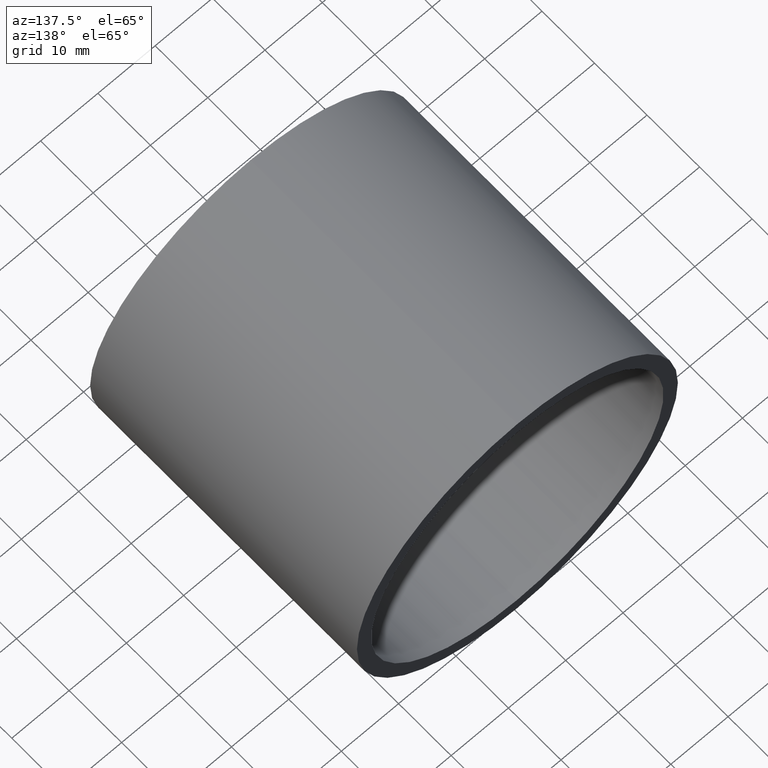
[diagram: clean part render]
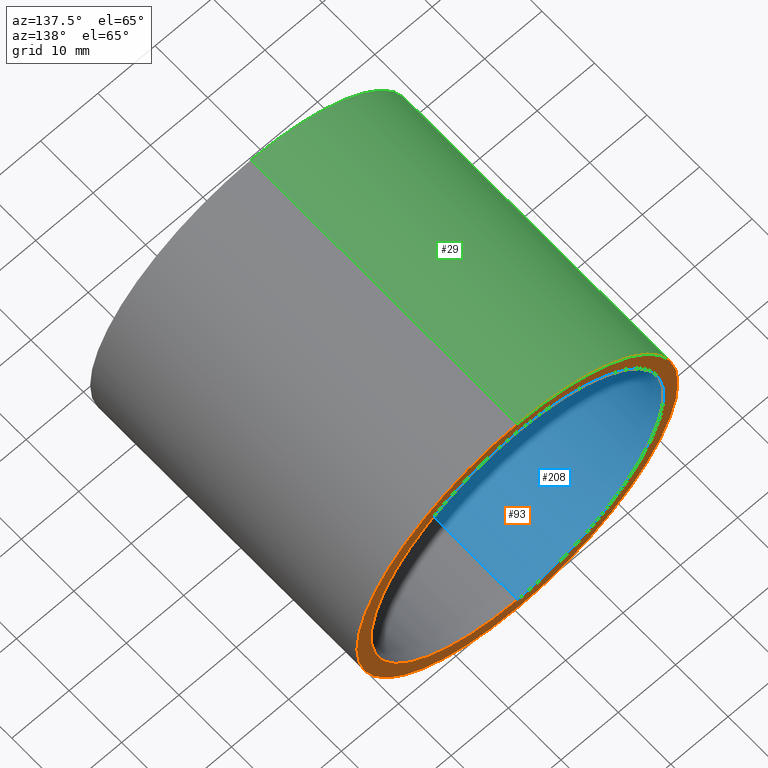
[diagram: same view with three faces highlighted in distinct colors, each labeled with its STEP entity id]
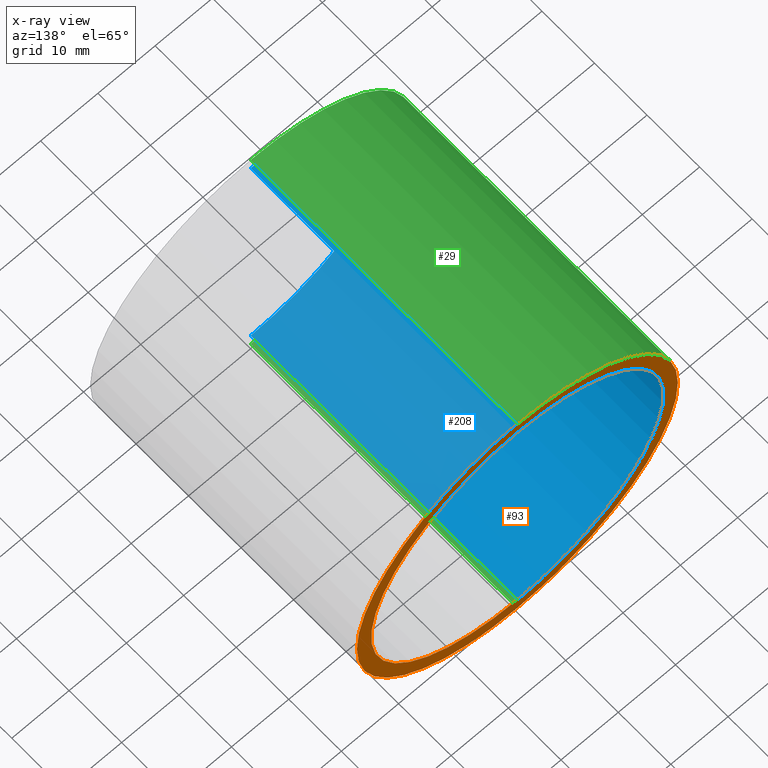
[diagram: x-ray of the same camera — body ghosted, the three highlighted faces saturated]
A machine part, auxiliary view with three faces highlighted in distinct colors.
The next image is the same camera in x-ray (body ghosted, the three faces saturated) — at least one of them is partly hidden behind the body in this view.
Their STEP definitions:

[orange] entity #93 — the highlighted planar face has unit normal (0, -1, 0).
#1 = EDGE_LOOP ( 'NONE', ( #199, #37 ) ) ;
#6 = CARTESIAN_POINT ( 'NONE',  ( 0.0000000000000000000, 50.79999999999998300, 0.0000000000000000000 ) ) ;
#7 = AXIS2_PLACEMENT_3D ( 'NONE', #200, #154, #181 ) ;
#18 = VERTEX_POINT ( 'NONE', #111 ) ;
#23 = ORIENTED_EDGE ( 'NONE', *, *, #167, .F. ) ;
#30 = CIRCLE ( 'NONE', #7, 28.00000000000002100 ) ;
#37 = ORIENTED_EDGE ( 'NONE', *, *, #239, .T. ) ;
#38 = DIRECTION ( 'NONE',  ( 0.0000000000000000000, 0.0000000000000000000, 1.000000000000000000 ) ) ;
#45 = AXIS2_PLACEMENT_3D ( 'NONE', #244, #228, #170 ) ;
#63 = CIRCLE ( 'NONE', #104, 28.00000000000002100 ) ;
#74 = EDGE_CURVE ( 'NONE', #123, #96, #155, .T. ) ;
#78 = DIRECTION ( 'NONE',  ( 0.0000000000000000000, 0.0000000000000000000, 1.000000000000000000 ) ) ;
#88 = CARTESIAN_POINT ( 'NONE',  ( 3.122849337825752200E-015, 50.79999999999998300, -25.50000000000001100 ) ) ;
#93 = ADVANCED_FACE ( 'NONE', ( #174, #125 ), #241, .F. ) ;
#96 = VERTEX_POINT ( 'NONE', #88 ) ;
#104 = AXIS2_PLACEMENT_3D ( 'NONE', #6, #211, #78 ) ;
#111 = CARTESIAN_POINT ( 'NONE',  ( 0.0000000000000000000, 50.79999999999998300, 28.00000000000002100 ) ) ;
#114 = CARTESIAN_POINT ( 'NONE',  ( 3.429011037612591600E-015, 50.79999999999998300, -28.00000000000002100 ) ) ;
#116 = DIRECTION ( 'NONE',  ( 0.0000000000000000000, -1.000000000000000000, 0.0000000000000000000 ) ) ;
#118 = DIRECTION ( 'NONE',  ( 0.0000000000000000000, -0.0000000000000000000, -1.000000000000000000 ) ) ;
#123 = VERTEX_POINT ( 'NONE', #138 ) ;
#124 = AXIS2_PLACEMENT_3D ( 'NONE', #171, #226, #38 ) ;
#125 = FACE_OUTER_BOUND ( 'NONE', #1, .T. ) ;
#129 = ORIENTED_EDGE ( 'NONE', *, *, #74, .F. ) ;
#138 = CARTESIAN_POINT ( 'NONE',  ( 0.0000000000000000000, 50.79999999999998300, 25.50000000000001100 ) ) ;
#153 = EDGE_CURVE ( 'NONE', #18, #163, #30, .T. ) ;
#154 = DIRECTION ( 'NONE',  ( -0.0000000000000000000, 1.000000000000000000, -0.0000000000000000000 ) ) ;
#155 = CIRCLE ( 'NONE', #124, 25.50000000000001100 ) ;
#163 = VERTEX_POINT ( 'NONE', #114 ) ;
#165 = AXIS2_PLACEMENT_3D ( 'NONE', #196, #116, #118 ) ;
#167 = EDGE_CURVE ( 'NONE', #96, #123, #176, .T. ) ;
#170 = DIRECTION ( 'NONE',  ( 0.0000000000000000000, 0.0000000000000000000, 1.000000000000000000 ) ) ;
#171 = CARTESIAN_POINT ( 'NONE',  ( 0.0000000000000000000, 50.79999999999998300, 0.0000000000000000000 ) ) ;
#174 = FACE_BOUND ( 'NONE', #232, .T. ) ;
#176 = CIRCLE ( 'NONE', #45, 25.50000000000001100 ) ;
#181 = DIRECTION ( 'NONE',  ( 0.0000000000000000000, 0.0000000000000000000, 1.000000000000000000 ) ) ;
#196 = CARTESIAN_POINT ( 'NONE',  ( 25.50000000000001100, 50.79999999999998300, 0.0000000000000000000 ) ) ;
#199 = ORIENTED_EDGE ( 'NONE', *, *, #153, .T. ) ;
#200 = CARTESIAN_POINT ( 'NONE',  ( 0.0000000000000000000, 50.79999999999998300, 0.0000000000000000000 ) ) ;
#211 = DIRECTION ( 'NONE',  ( -0.0000000000000000000, 1.000000000000000000, -0.0000000000000000000 ) ) ;
#226 = DIRECTION ( 'NONE',  ( -0.0000000000000000000, 1.000000000000000000, -0.0000000000000000000 ) ) ;
#228 = DIRECTION ( 'NONE',  ( -0.0000000000000000000, 1.000000000000000000, -0.0000000000000000000 ) ) ;
#232 = EDGE_LOOP ( 'NONE', ( #129, #23 ) ) ;
#239 = EDGE_CURVE ( 'NONE', #163, #18, #63, .T. ) ;
#241 = PLANE ( 'NONE',  #165 ) ;
#244 = CARTESIAN_POINT ( 'NONE',  ( 0.0000000000000000000, 50.79999999999998300, 0.0000000000000000000 ) ) ;

[blue] entity #208 — the highlighted cylindrical surface (partial cylindrical patch) has radius 25.5 mm, axis along (-0, 1, -0).
#2 = CARTESIAN_POINT ( 'NONE',  ( 3.122849337825752600E-015, -2.775557561562891400E-014, -25.50000000000001400 ) ) ;
#10 = VECTOR ( 'NONE', #135, 1000.000000000000000 ) ;
#14 = CYLINDRICAL_SURFACE ( 'NONE', #70, 25.50000000000001400 ) ;
#22 = EDGE_LOOP ( 'NONE', ( #186, #139, #84, #189 ) ) ;
#28 = DIRECTION ( 'NONE',  ( -0.0000000000000000000, 1.000000000000000000, -0.0000000000000000000 ) ) ;
#45 = AXIS2_PLACEMENT_3D ( 'NONE', #244, #228, #170 ) ;
#46 = LINE ( 'NONE', #87, #10 ) ;
#61 = CARTESIAN_POINT ( 'NONE',  ( 0.0000000000000000000, 161.3761669434274500, 0.0000000000000000000 ) ) ;
#67 = FACE_OUTER_BOUND ( 'NONE', #22, .T. ) ;
#70 = AXIS2_PLACEMENT_3D ( 'NONE', #61, #28, #99 ) ;
#82 = CIRCLE ( 'NONE', #169, 25.50000000000001400 ) ;
#84 = ORIENTED_EDGE ( 'NONE', *, *, #167, .T. ) ;
#87 = CARTESIAN_POINT ( 'NONE',  ( 3.122849337825752600E-015, 161.3761669434274500, -25.50000000000001400 ) ) ;
#88 = CARTESIAN_POINT ( 'NONE',  ( 3.122849337825752200E-015, 50.79999999999998300, -25.50000000000001100 ) ) ;
#92 = DIRECTION ( 'NONE',  ( -0.0000000000000000000, 1.000000000000000000, -0.0000000000000000000 ) ) ;
#96 = VERTEX_POINT ( 'NONE', #88 ) ;
#99 = DIRECTION ( 'NONE',  ( 0.0000000000000000000, 0.0000000000000000000, 1.000000000000000000 ) ) ;
#109 = VERTEX_POINT ( 'NONE', #2 ) ;
#113 = CARTESIAN_POINT ( 'NONE',  ( 0.0000000000000000000, 161.3761669434274500, 25.50000000000001400 ) ) ;
#115 = EDGE_CURVE ( 'NONE', #109, #96, #46, .T. ) ;
#122 = LINE ( 'NONE', #113, #134 ) ;
#123 = VERTEX_POINT ( 'NONE', #138 ) ;
#134 = VECTOR ( 'NONE', #92, 1000.000000000000000 ) ;
#135 = DIRECTION ( 'NONE',  ( -0.0000000000000000000, 1.000000000000000000, -0.0000000000000000000 ) ) ;
#138 = CARTESIAN_POINT ( 'NONE',  ( 0.0000000000000000000, 50.79999999999998300, 25.50000000000001100 ) ) ;
#139 = ORIENTED_EDGE ( 'NONE', *, *, #115, .T. ) ;
#152 = DIRECTION ( 'NONE',  ( -0.0000000000000000000, 1.000000000000000000, -0.0000000000000000000 ) ) ;
#167 = EDGE_CURVE ( 'NONE', #96, #123, #176, .T. ) ;
#169 = AXIS2_PLACEMENT_3D ( 'NONE', #202, #152, #183 ) ;
#170 = DIRECTION ( 'NONE',  ( 0.0000000000000000000, 0.0000000000000000000, 1.000000000000000000 ) ) ;
#176 = CIRCLE ( 'NONE', #45, 25.50000000000001100 ) ;
#178 = VERTEX_POINT ( 'NONE', #185 ) ;
#180 = EDGE_CURVE ( 'NONE', #109, #178, #82, .T. ) ;
#183 = DIRECTION ( 'NONE',  ( 0.0000000000000000000, 0.0000000000000000000, 1.000000000000000000 ) ) ;
#185 = CARTESIAN_POINT ( 'NONE',  ( 0.0000000000000000000, -2.775557561562891400E-014, 25.50000000000001400 ) ) ;
#186 = ORIENTED_EDGE ( 'NONE', *, *, #180, .F. ) ;
#189 = ORIENTED_EDGE ( 'NONE', *, *, #194, .F. ) ;
#194 = EDGE_CURVE ( 'NONE', #178, #123, #122, .T. ) ;
#202 = CARTESIAN_POINT ( 'NONE',  ( 0.0000000000000000000, -2.775557561562891400E-014, 0.0000000000000000000 ) ) ;
#208 = ADVANCED_FACE ( 'NONE', ( #67 ), #14, .F. ) ;
#228 = DIRECTION ( 'NONE',  ( -0.0000000000000000000, 1.000000000000000000, -0.0000000000000000000 ) ) ;
#244 = CARTESIAN_POINT ( 'NONE',  ( 0.0000000000000000000, 50.79999999999998300, 0.0000000000000000000 ) ) ;

[green] entity #29 — the highlighted cylindrical surface (partial cylindrical patch) has radius 28 mm, axis along (-0, 1, -0).
#6 = CARTESIAN_POINT ( 'NONE',  ( 0.0000000000000000000, 50.79999999999998300, 0.0000000000000000000 ) ) ;
#11 = EDGE_LOOP ( 'NONE', ( #217, #227, #136, #103 ) ) ;
#17 = DIRECTION ( 'NONE',  ( -0.0000000000000000000, 1.000000000000000000, -0.0000000000000000000 ) ) ;
#18 = VERTEX_POINT ( 'NONE', #111 ) ;
#29 = ADVANCED_FACE ( 'NONE', ( #83 ), #198, .T. ) ;
#35 = CARTESIAN_POINT ( 'NONE',  ( 0.0000000000000000000, -2.775557561562891400E-014, 28.00000000000002100 ) ) ;
#41 = DIRECTION ( 'NONE',  ( 0.0000000000000000000, 0.0000000000000000000, 1.000000000000000000 ) ) ;
#42 = EDGE_CURVE ( 'NONE', #203, #163, #94, .T. ) ;
#52 = DIRECTION ( 'NONE',  ( -0.0000000000000000000, 1.000000000000000000, -0.0000000000000000000 ) ) ;
#60 = AXIS2_PLACEMENT_3D ( 'NONE', #130, #17, #41 ) ;
#63 = CIRCLE ( 'NONE', #104, 28.00000000000002100 ) ;
#68 = DIRECTION ( 'NONE',  ( 0.0000000000000000000, 0.0000000000000000000, 1.000000000000000000 ) ) ;
#78 = DIRECTION ( 'NONE',  ( 0.0000000000000000000, 0.0000000000000000000, 1.000000000000000000 ) ) ;
#83 = FACE_OUTER_BOUND ( 'NONE', #11, .T. ) ;
#91 = VERTEX_POINT ( 'NONE', #35 ) ;
#94 = LINE ( 'NONE', #147, #146 ) ;
#103 = ORIENTED_EDGE ( 'NONE', *, *, #239, .F. ) ;
#104 = AXIS2_PLACEMENT_3D ( 'NONE', #6, #211, #78 ) ;
#110 = DIRECTION ( 'NONE',  ( -0.0000000000000000000, 1.000000000000000000, -0.0000000000000000000 ) ) ;
#111 = CARTESIAN_POINT ( 'NONE',  ( 0.0000000000000000000, 50.79999999999998300, 28.00000000000002100 ) ) ;
#114 = CARTESIAN_POINT ( 'NONE',  ( 3.429011037612591600E-015, 50.79999999999998300, -28.00000000000002100 ) ) ;
#130 = CARTESIAN_POINT ( 'NONE',  ( 0.0000000000000000000, -2.775557561562891400E-014, 0.0000000000000000000 ) ) ;
#136 = ORIENTED_EDGE ( 'NONE', *, *, #230, .T. ) ;
#137 = VECTOR ( 'NONE', #191, 1000.000000000000000 ) ;
#144 = AXIS2_PLACEMENT_3D ( 'NONE', #238, #110, #68 ) ;
#146 = VECTOR ( 'NONE', #52, 1000.000000000000000 ) ;
#147 = CARTESIAN_POINT ( 'NONE',  ( 3.429011037612591600E-015, 161.3761669434274500, -28.00000000000002100 ) ) ;
#163 = VERTEX_POINT ( 'NONE', #114 ) ;
#173 = CARTESIAN_POINT ( 'NONE',  ( 0.0000000000000000000, 161.3761669434274500, 28.00000000000002100 ) ) ;
#187 = EDGE_CURVE ( 'NONE', #203, #91, #237, .T. ) ;
#191 = DIRECTION ( 'NONE',  ( -0.0000000000000000000, 1.000000000000000000, -0.0000000000000000000 ) ) ;
#198 = CYLINDRICAL_SURFACE ( 'NONE', #144, 28.00000000000002100 ) ;
#203 = VERTEX_POINT ( 'NONE', #205 ) ;
#205 = CARTESIAN_POINT ( 'NONE',  ( 3.429011037612591600E-015, -2.775557561562891400E-014, -28.00000000000002100 ) ) ;
#206 = LINE ( 'NONE', #173, #137 ) ;
#211 = DIRECTION ( 'NONE',  ( -0.0000000000000000000, 1.000000000000000000, -0.0000000000000000000 ) ) ;
#217 = ORIENTED_EDGE ( 'NONE', *, *, #42, .F. ) ;
#227 = ORIENTED_EDGE ( 'NONE', *, *, #187, .T. ) ;
#230 = EDGE_CURVE ( 'NONE', #91, #18, #206, .T. ) ;
#237 = CIRCLE ( 'NONE', #60, 28.00000000000002100 ) ;
#238 = CARTESIAN_POINT ( 'NONE',  ( 0.0000000000000000000, 161.3761669434274500, 0.0000000000000000000 ) ) ;
#239 = EDGE_CURVE ( 'NONE', #163, #18, #63, .T. ) ;